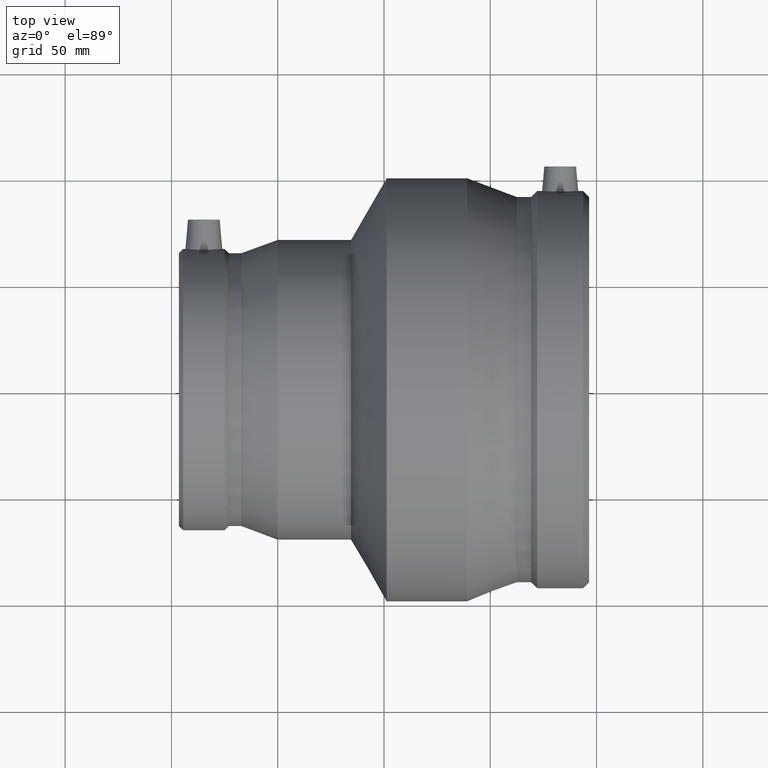
[diagram: clean part render]
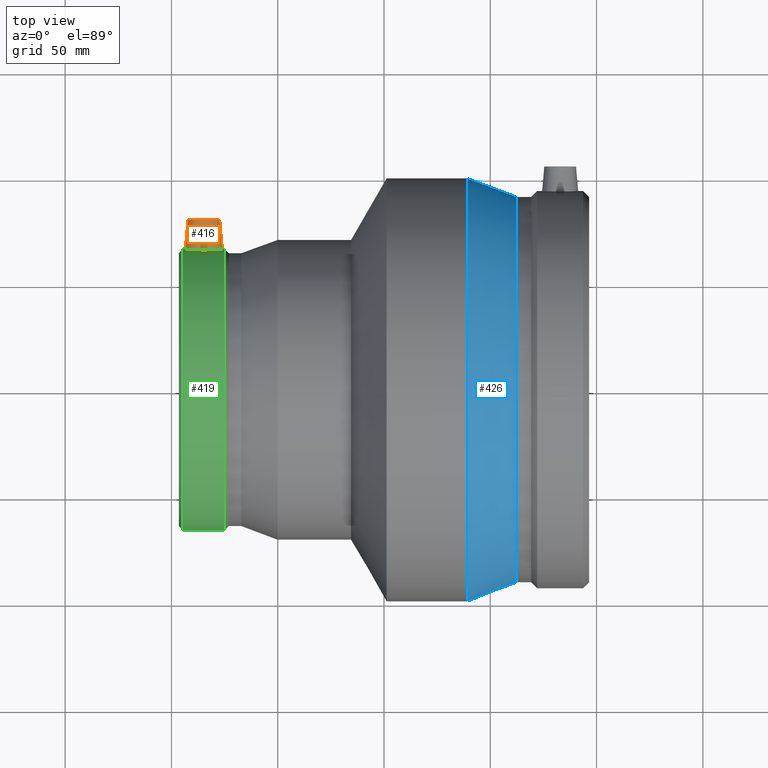
[diagram: same view with three faces highlighted in distinct colors, each labeled with its STEP entity id]
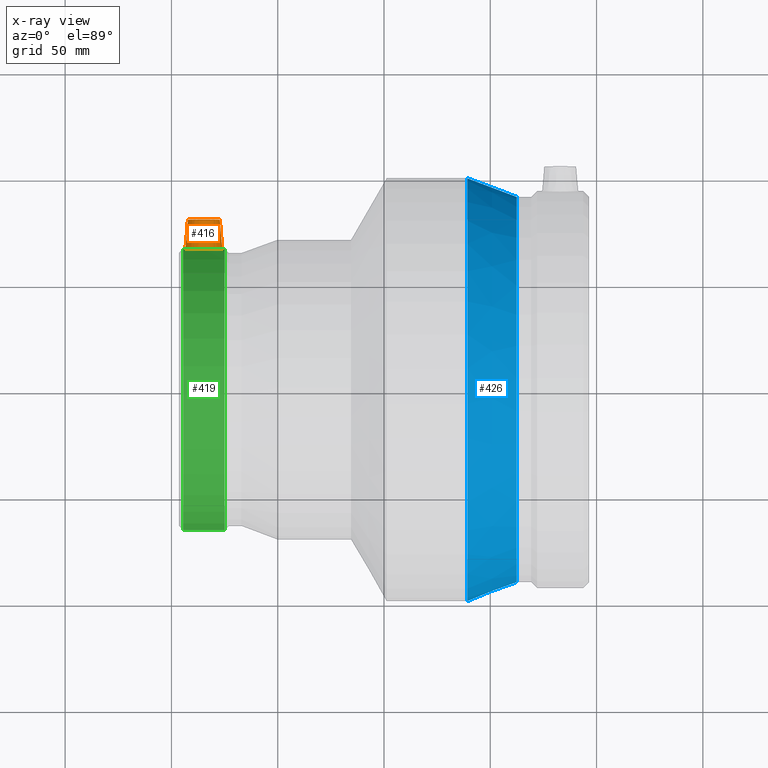
[diagram: x-ray of the same camera — body ghosted, the three highlighted faces saturated]
A machine part, top view with three faces highlighted in distinct colors.
The next image is the same camera in x-ray (body ghosted, the three faces saturated) — at least one of them is partly hidden behind the body in this view.
Their STEP definitions:

[orange] entity #416 — the highlighted conical surface has half-angle 5 deg.
#16=B_SPLINE_CURVE_WITH_KNOTS('',3,(#745,#746,#747,#748,#749,#750,#751,
#752,#753,#754,#755,#756,#757,#758,#759,#760,#761,#762,#763,#764,#765,#766,
#767,#768,#769,#770,#771,#772,#773,#774,#775,#776,#777,#778),
 .UNSPECIFIED.,.T.,.F.,(4,2,2,2,2,2,2,2,2,2,2,2,2,2,2,2,4),(0.,0.329357665774512,
0.658715331549024,0.987627213761086,1.31653909597315,1.64545097818521,1.97436286039727,
2.30372052617178,2.6330781919463,2.96243585772081,3.29179352349532,3.62070540570738,
3.94961728791944,4.27852917013151,4.60744105234357,4.93679871811808,5.26615638389259),
 .UNSPECIFIED.);
#18=CONICAL_SURFACE('',#467,7.5,5.);
#38=FACE_BOUND('',#143,.T.);
#94=FACE_OUTER_BOUND('',#142,.T.);
#142=EDGE_LOOP('',(#335));
#143=EDGE_LOOP('',(#336));
#209=CIRCLE('',#466,7.5);
#247=VERTEX_POINT('',#741);
#248=VERTEX_POINT('',#744);
#286=EDGE_CURVE('',#247,#247,#209,.T.);
#287=EDGE_CURVE('',#248,#248,#16,.T.);
#335=ORIENTED_EDGE('',*,*,#286,.T.);
#336=ORIENTED_EDGE('',*,*,#287,.F.);
#416=ADVANCED_FACE('',(#94,#38),#18,.T.);
#466=AXIS2_PLACEMENT_3D('',#742,#564,#565);
#467=AXIS2_PLACEMENT_3D('',#743,#566,#567);
#564=DIRECTION('center_axis',(0.,-1.,0.));
#565=DIRECTION('ref_axis',(1.,0.,0.));
#566=DIRECTION('center_axis',(0.,-1.,0.));
#567=DIRECTION('ref_axis',(1.,0.,0.));
#741=CARTESIAN_POINT('',(-92.255,80.,9.18485099360515E-16));
#742=CARTESIAN_POINT('Origin',(-84.755,80.,0.));
#743=CARTESIAN_POINT('Origin',(-84.755,80.,0.));
#744=CARTESIAN_POINT('',(-84.755,65.6895375180849,-8.75200323698063));
#745=CARTESIAN_POINT('Ctrl Pts',(-84.755,65.6895375180849,-8.75200323698063));
#746=CARTESIAN_POINT('Ctrl Pts',(-83.657141114085,65.6895375180849,-8.75200323698063));
#747=CARTESIAN_POINT('Ctrl Pts',(-82.4877695006273,65.7202639639834,-8.53021243681632));
#748=CARTESIAN_POINT('Ctrl Pts',(-80.3404967379886,65.8306117047425,-7.63204949619966));
#749=CARTESIAN_POINT('Ctrl Pts',(-79.3624644755632,65.9085792759314,-6.95578840721046));
#750=CARTESIAN_POINT('Ctrl Pts',(-77.8215876097755,66.0542015256259,-5.40042801365702));
#751=CARTESIAN_POINT('Ctrl Pts',(-77.1550212623491,66.1313676395541,-4.41767155140056));
#752=CARTESIAN_POINT('Ctrl Pts',(-76.2710985699768,66.2400200581787,-2.26568980173054));
#753=CARTESIAN_POINT('Ctrl Pts',(-76.0537806497891,66.27,-1.09637294070687));
#754=CARTESIAN_POINT('Ctrl Pts',(-76.0537806497891,66.27,1.09637294070687));
#755=CARTESIAN_POINT('Ctrl Pts',(-76.2710985699768,66.2400200581787,2.26568980173054));
#756=CARTESIAN_POINT('Ctrl Pts',(-77.1550212623491,66.1313676395541,4.41767155140056));
#757=CARTESIAN_POINT('Ctrl Pts',(-77.8215876097755,66.0542015256259,5.40042801365702));
#758=CARTESIAN_POINT('Ctrl Pts',(-79.3624644755632,65.9085792759314,6.95578840721046));
#759=CARTESIAN_POINT('Ctrl Pts',(-80.3404967379886,65.8306117047425,7.63204949619966));
#760=CARTESIAN_POINT('Ctrl Pts',(-82.4877695006274,65.7202639639834,8.53021243681632));
#761=CARTESIAN_POINT('Ctrl Pts',(-83.657141114085,65.6895375180849,8.75200323698063));
#762=CARTESIAN_POINT('Ctrl Pts',(-85.852858885915,65.6895375180849,8.75200323698063));
#763=CARTESIAN_POINT('Ctrl Pts',(-87.0222304993727,65.7202639639834,8.53021243681632));
#764=CARTESIAN_POINT('Ctrl Pts',(-89.1695032620114,65.8306117047425,7.63204949619965));
#765=CARTESIAN_POINT('Ctrl Pts',(-90.1475355244368,65.9085792759314,6.95578840721047));
#766=CARTESIAN_POINT('Ctrl Pts',(-91.6884123902245,66.0542015256259,5.40042801365702));
#767=CARTESIAN_POINT('Ctrl Pts',(-92.3549787376509,66.1313676395541,4.41767155140056));
#768=CARTESIAN_POINT('Ctrl Pts',(-93.2389014300232,66.2400200581787,2.26568980173054));
#769=CARTESIAN_POINT('Ctrl Pts',(-93.4562193502109,66.27,1.09637294070687));
#770=CARTESIAN_POINT('Ctrl Pts',(-93.4562193502109,66.27,-1.09637294070687));
#771=CARTESIAN_POINT('Ctrl Pts',(-93.2389014300232,66.2400200581787,-2.26568980173054));
#772=CARTESIAN_POINT('Ctrl Pts',(-92.3549787376509,66.1313676395541,-4.41767155140056));
#773=CARTESIAN_POINT('Ctrl Pts',(-91.6884123902245,66.0542015256259,-5.40042801365702));
#774=CARTESIAN_POINT('Ctrl Pts',(-90.1475355244368,65.9085792759314,-6.95578840721047));
#775=CARTESIAN_POINT('Ctrl Pts',(-89.1695032620114,65.8306117047425,-7.63204949619965));
#776=CARTESIAN_POINT('Ctrl Pts',(-87.0222304993727,65.7202639639834,-8.53021243681632));
#777=CARTESIAN_POINT('Ctrl Pts',(-85.852858885915,65.6895375180849,-8.75200323698063));
#778=CARTESIAN_POINT('Ctrl Pts',(-84.755,65.6895375180849,-8.75200323698063));

[blue] entity #426 — the highlighted conical surface has half-angle 20.667 deg.
#23=CONICAL_SURFACE('',#487,95.11205,20.6668482190193);
#49=FACE_BOUND('',#164,.T.);
#104=FACE_OUTER_BOUND('',#163,.T.);
#163=EDGE_LOOP('',(#356));
#164=EDGE_LOOP('',(#357));
#219=CIRCLE('',#486,99.5);
#220=CIRCLE('',#488,90.7241);
#258=VERTEX_POINT('',#806);
#259=VERTEX_POINT('',#809);
#297=EDGE_CURVE('',#258,#258,#219,.T.);
#298=EDGE_CURVE('',#259,#259,#220,.T.);
#356=ORIENTED_EDGE('',*,*,#297,.T.);
#357=ORIENTED_EDGE('',*,*,#298,.F.);
#426=ADVANCED_FACE('',(#104,#49),#23,.T.);
#486=AXIS2_PLACEMENT_3D('',#807,#604,#605);
#487=AXIS2_PLACEMENT_3D('',#808,#606,#607);
#488=AXIS2_PLACEMENT_3D('',#810,#608,#609);
#604=DIRECTION('center_axis',(1.,0.,0.));
#605=DIRECTION('ref_axis',(0.,0.,-1.));
#606=DIRECTION('center_axis',(-1.,0.,0.));
#607=DIRECTION('ref_axis',(0.,1.,0.));
#608=DIRECTION('center_axis',(1.,0.,0.));
#609=DIRECTION('ref_axis',(0.,0.,-1.));
#806=CARTESIAN_POINT('',(39.1595517341003,99.5,0.));
#807=CARTESIAN_POINT('Origin',(39.1595517341003,0.,0.));
#808=CARTESIAN_POINT('Origin',(50.7922758670501,0.,0.));
#809=CARTESIAN_POINT('',(62.425,90.7241,0.));
#810=CARTESIAN_POINT('Origin',(62.425,0.,0.));

[green] entity #419 — the highlighted cylindrical surface (bore or boss wall) has radius 66.27 mm, axis along (1, 0, 0).
#16=B_SPLINE_CURVE_WITH_KNOTS('',3,(#745,#746,#747,#748,#749,#750,#751,
#752,#753,#754,#755,#756,#757,#758,#759,#760,#761,#762,#763,#764,#765,#766,
#767,#768,#769,#770,#771,#772,#773,#774,#775,#776,#777,#778),
 .UNSPECIFIED.,.T.,.F.,(4,2,2,2,2,2,2,2,2,2,2,2,2,2,2,2,4),(0.,0.329357665774512,
0.658715331549024,0.987627213761086,1.31653909597315,1.64545097818521,1.97436286039727,
2.30372052617178,2.6330781919463,2.96243585772081,3.29179352349532,3.62070540570738,
3.94961728791944,4.27852917013151,4.60744105234357,4.93679871811808,5.26615638389259),
 .UNSPECIFIED.);
#41=FACE_BOUND('',#149,.T.);
#42=FACE_BOUND('',#150,.T.);
#72=CYLINDRICAL_SURFACE('',#473,66.27);
#97=FACE_OUTER_BOUND('',#148,.T.);
#148=EDGE_LOOP('',(#341));
#149=EDGE_LOOP('',(#342));
#150=EDGE_LOOP('',(#343));
#212=CIRCLE('',#472,66.27);
#213=CIRCLE('',#474,66.27);
#248=VERTEX_POINT('',#744);
#251=VERTEX_POINT('',#785);
#252=VERTEX_POINT('',#788);
#287=EDGE_CURVE('',#248,#248,#16,.T.);
#290=EDGE_CURVE('',#251,#251,#212,.T.);
#291=EDGE_CURVE('',#252,#252,#213,.T.);
#341=ORIENTED_EDGE('',*,*,#290,.T.);
#342=ORIENTED_EDGE('',*,*,#287,.T.);
#343=ORIENTED_EDGE('',*,*,#291,.F.);
#419=ADVANCED_FACE('',(#97,#41,#42),#72,.T.);
#472=AXIS2_PLACEMENT_3D('',#786,#576,#577);
#473=AXIS2_PLACEMENT_3D('',#787,#578,#579);
#474=AXIS2_PLACEMENT_3D('',#789,#580,#581);
#576=DIRECTION('center_axis',(1.,0.,0.));
#577=DIRECTION('ref_axis',(0.,0.,-1.));
#578=DIRECTION('center_axis',(1.,0.,0.));
#579=DIRECTION('ref_axis',(0.,1.,0.));
#580=DIRECTION('center_axis',(1.,0.,0.));
#581=DIRECTION('ref_axis',(0.,0.,-1.));
#744=CARTESIAN_POINT('',(-84.755,65.6895375180849,-8.75200323698063));
#745=CARTESIAN_POINT('Ctrl Pts',(-84.755,65.6895375180849,-8.75200323698063));
#746=CARTESIAN_POINT('Ctrl Pts',(-83.657141114085,65.6895375180849,-8.75200323698063));
#747=CARTESIAN_POINT('Ctrl Pts',(-82.4877695006273,65.7202639639834,-8.53021243681632));
#748=CARTESIAN_POINT('Ctrl Pts',(-80.3404967379886,65.8306117047425,-7.63204949619966));
#749=CARTESIAN_POINT('Ctrl Pts',(-79.3624644755632,65.9085792759314,-6.95578840721046));
#750=CARTESIAN_POINT('Ctrl Pts',(-77.8215876097755,66.0542015256259,-5.40042801365702));
#751=CARTESIAN_POINT('Ctrl Pts',(-77.1550212623491,66.1313676395541,-4.41767155140056));
#752=CARTESIAN_POINT('Ctrl Pts',(-76.2710985699768,66.2400200581787,-2.26568980173054));
#753=CARTESIAN_POINT('Ctrl Pts',(-76.0537806497891,66.27,-1.09637294070687));
#754=CARTESIAN_POINT('Ctrl Pts',(-76.0537806497891,66.27,1.09637294070687));
#755=CARTESIAN_POINT('Ctrl Pts',(-76.2710985699768,66.2400200581787,2.26568980173054));
#756=CARTESIAN_POINT('Ctrl Pts',(-77.1550212623491,66.1313676395541,4.41767155140056));
#757=CARTESIAN_POINT('Ctrl Pts',(-77.8215876097755,66.0542015256259,5.40042801365702));
#758=CARTESIAN_POINT('Ctrl Pts',(-79.3624644755632,65.9085792759314,6.95578840721046));
#759=CARTESIAN_POINT('Ctrl Pts',(-80.3404967379886,65.8306117047425,7.63204949619966));
#760=CARTESIAN_POINT('Ctrl Pts',(-82.4877695006274,65.7202639639834,8.53021243681632));
#761=CARTESIAN_POINT('Ctrl Pts',(-83.657141114085,65.6895375180849,8.75200323698063));
#762=CARTESIAN_POINT('Ctrl Pts',(-85.852858885915,65.6895375180849,8.75200323698063));
#763=CARTESIAN_POINT('Ctrl Pts',(-87.0222304993727,65.7202639639834,8.53021243681632));
#764=CARTESIAN_POINT('Ctrl Pts',(-89.1695032620114,65.8306117047425,7.63204949619965));
#765=CARTESIAN_POINT('Ctrl Pts',(-90.1475355244368,65.9085792759314,6.95578840721047));
#766=CARTESIAN_POINT('Ctrl Pts',(-91.6884123902245,66.0542015256259,5.40042801365702));
#767=CARTESIAN_POINT('Ctrl Pts',(-92.3549787376509,66.1313676395541,4.41767155140056));
#768=CARTESIAN_POINT('Ctrl Pts',(-93.2389014300232,66.2400200581787,2.26568980173054));
#769=CARTESIAN_POINT('Ctrl Pts',(-93.4562193502109,66.27,1.09637294070687));
#770=CARTESIAN_POINT('Ctrl Pts',(-93.4562193502109,66.27,-1.09637294070687));
#771=CARTESIAN_POINT('Ctrl Pts',(-93.2389014300232,66.2400200581787,-2.26568980173054));
#772=CARTESIAN_POINT('Ctrl Pts',(-92.3549787376509,66.1313676395541,-4.41767155140056));
#773=CARTESIAN_POINT('Ctrl Pts',(-91.6884123902245,66.0542015256259,-5.40042801365702));
#774=CARTESIAN_POINT('Ctrl Pts',(-90.1475355244368,65.9085792759314,-6.95578840721047));
#775=CARTESIAN_POINT('Ctrl Pts',(-89.1695032620114,65.8306117047425,-7.63204949619965));
#776=CARTESIAN_POINT('Ctrl Pts',(-87.0222304993727,65.7202639639834,-8.53021243681632));
#777=CARTESIAN_POINT('Ctrl Pts',(-85.852858885915,65.6895375180849,-8.75200323698063));
#778=CARTESIAN_POINT('Ctrl Pts',(-84.755,65.6895375180849,-8.75200323698063));
#785=CARTESIAN_POINT('',(-94.5119,66.27,0.));
#786=CARTESIAN_POINT('Origin',(-94.5119,0.,0.));
#787=CARTESIAN_POINT('Origin',(-84.755,0.,0.));
#788=CARTESIAN_POINT('',(-74.9981,66.27,0.));
#789=CARTESIAN_POINT('Origin',(-74.9981,0.,0.));